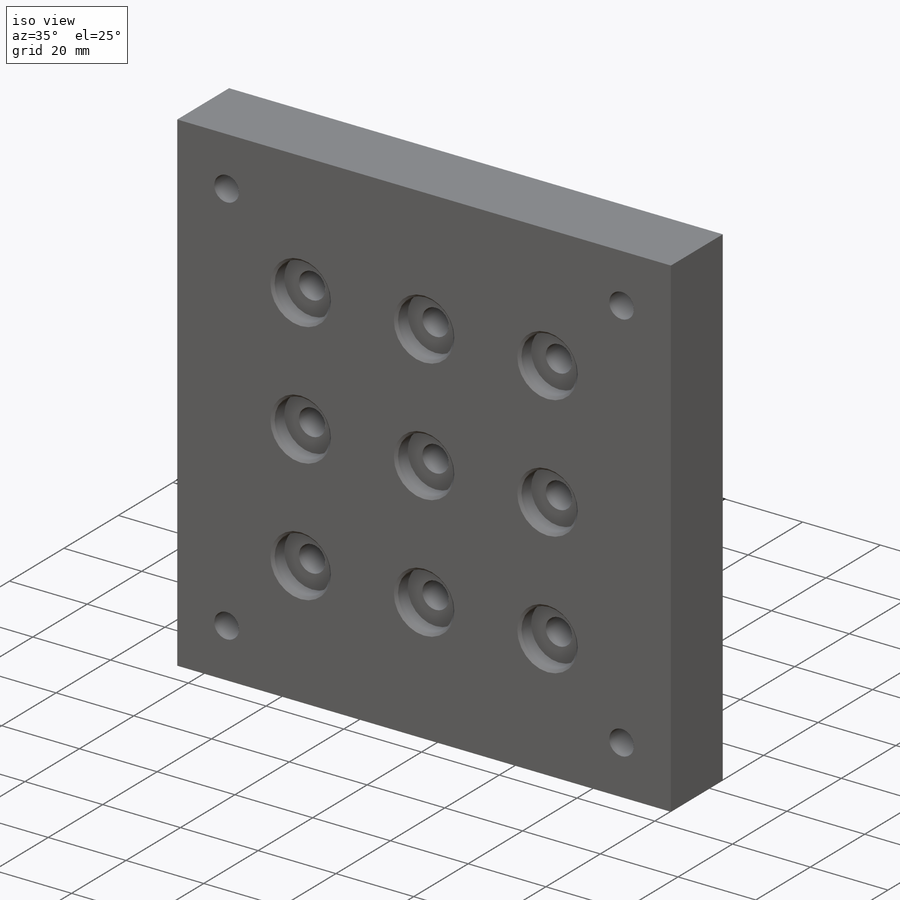
[diagram: iso view]
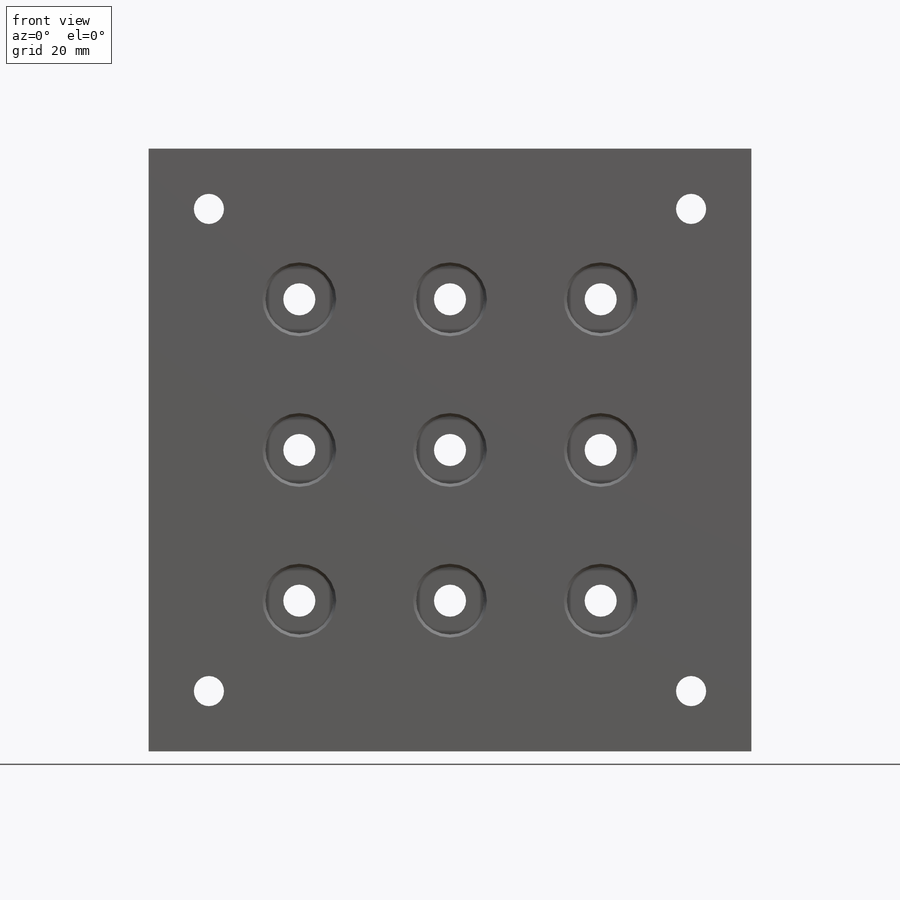
[diagram: front view]
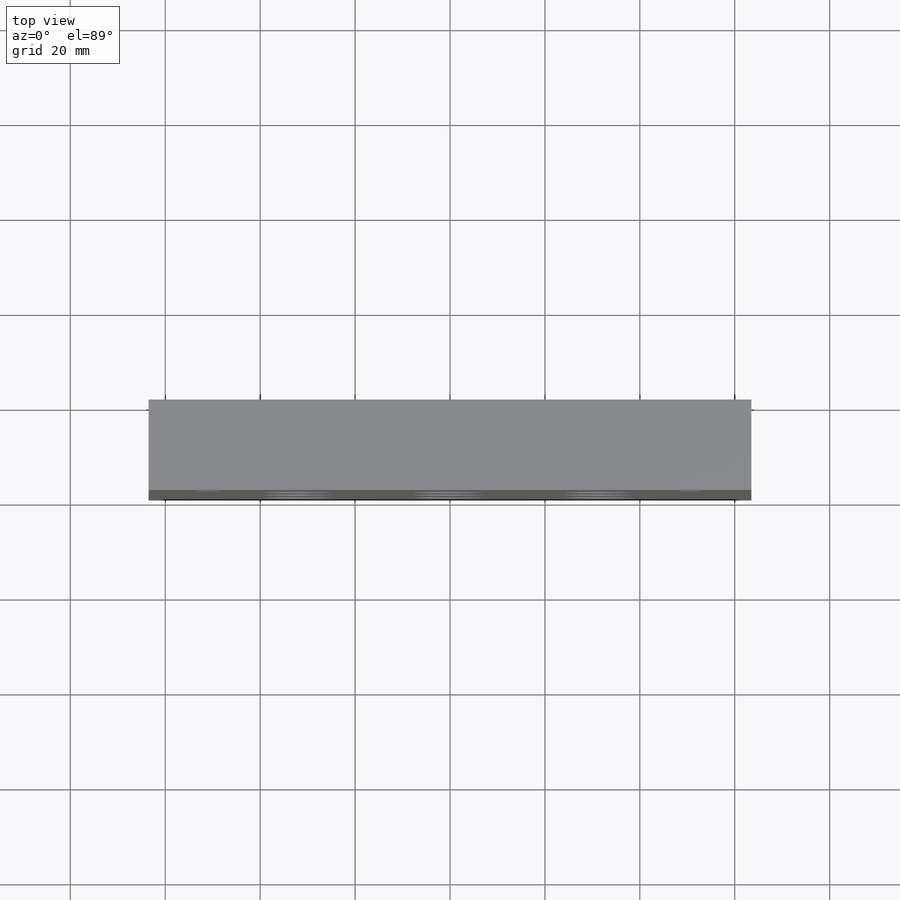
[diagram: top view]
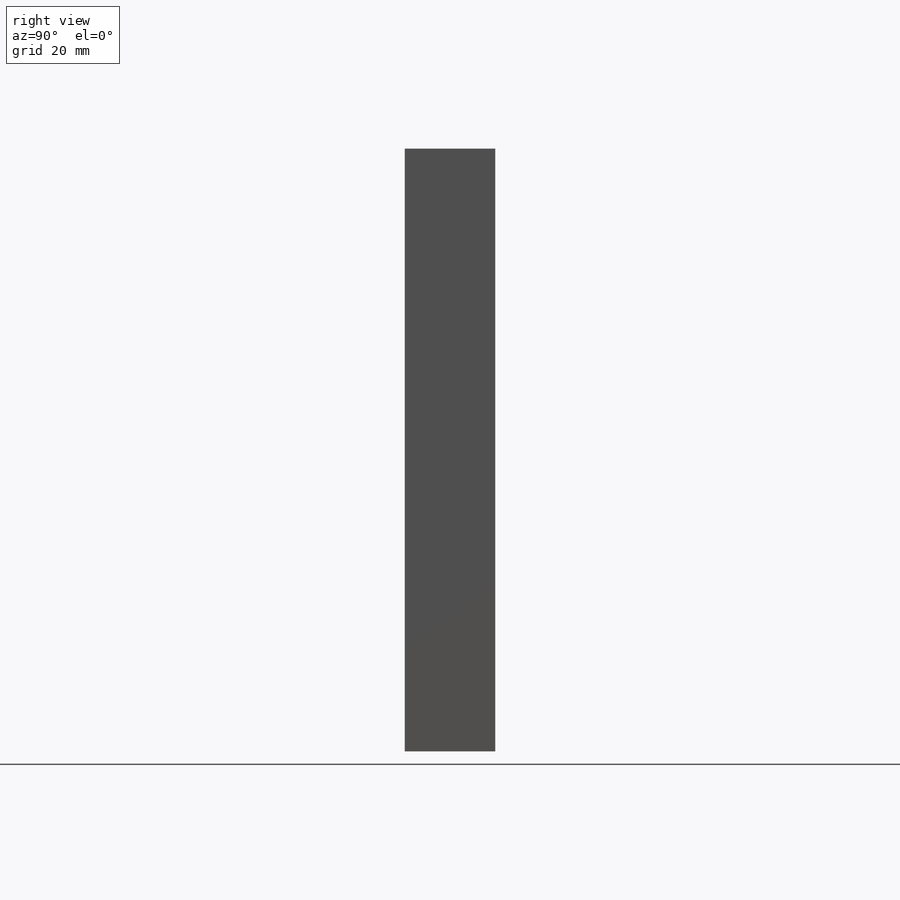
[diagram: right view]
SOLIDWORKS PART (.sldprt)
format: sldprt  version: not decoded by parser v0  size: 230,912 bytes
history: native  units: mm
features: sketch x5, hole x2, pattern_linear x2, material x1, extrude x1 (+12 scaffold rows collapsed)
feature tree (23):
  scaffold x12  (default folders/planes/origin — collapsed)
  material  "Material <not specified>"
  sketch  "Sketch2"  dims[D1=127.0mm D2=127.0mm]
  extrude  "Boss-Extrude1"  Depth=19.05mm
  hole  "CBORE for 1/4 Binding Head Machine Screw1"  Diameter=6.7564mm Depth=19.05mm
  sketch  "Sketch4"
  sketch  "Sketch5"  dims[hole-wizard template sketch: 42 standard entries collapsed; hole parameters kept: c12.Thru Hole Depth=19.05mm c12.C'Bore Dia.=14.2875mm c12.C'Bore Depth=4.191mm c12.Near C'Sink Dia.=15.5575mm c12.D6=~4.399409mm c12.Near C'Sink Angle=90.0deg]
  pattern_linear  "LPattern1"  Count1=2 Count2=2 Spacing1=31.75mm Spacing2=31.75mm
  pattern_linear  "LPattern2"  Count1=2 Count2=2 Spacing1=31.75mm Spacing2=31.75mm
  hole  "1/4 (0.25) Diameter Hole1"  Diameter=6.35mm Depth=59.944mm
  sketch  "Sketch7"  dims[c1.D1=50.8mm c1.D2=50.8mm c1.D3=~71.842049mm c2.D2=50.8mm c2.D3=50.8mm c2.D4=50.8mm]
  sketch  "Sketch6"  dims[hole-wizard template sketch: 47 standard entries collapsed; hole parameters kept: c15.Hole Depth=59.944mm c15.D3=~14.816244mm c15.Drill Angle=118.0deg]
decode coverage: 9 of 10 modeling features carry decoded parameters
note: ~ marks probable driven/reference dimensions
note: suppression state not decoded; provenance and decode notes live in map.json
